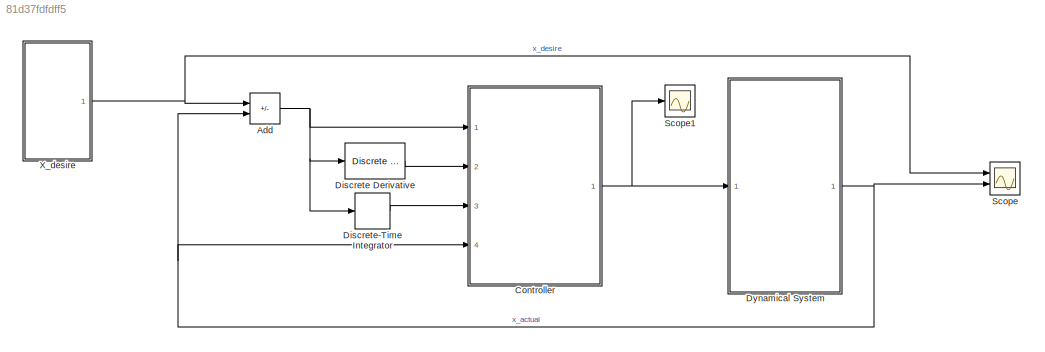
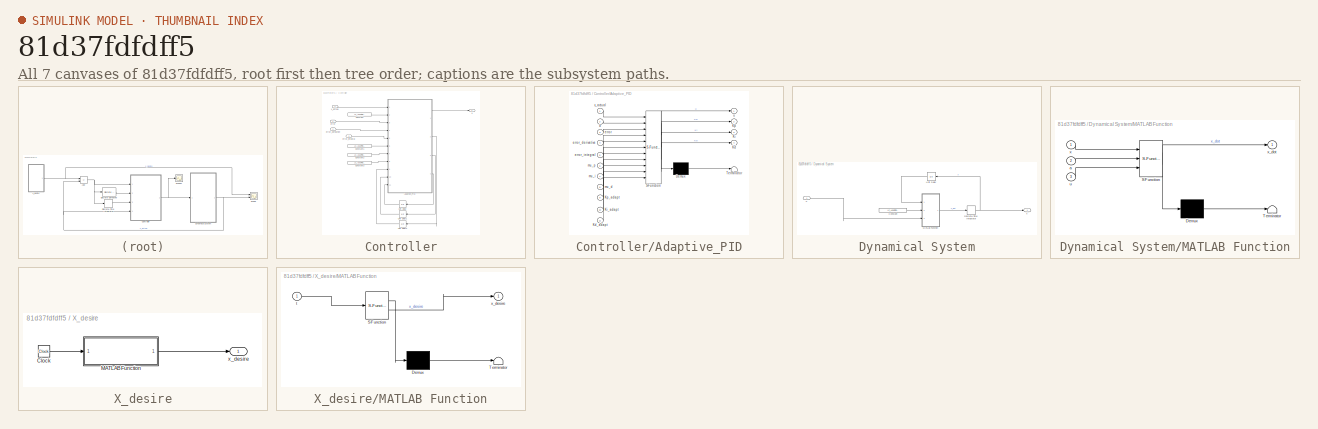
[diagram: thumbnail index - all 7 canvases of the model, root first then tree order]
MODEL slx_81d37fdfdff5
KIND model
CONFIG AbsTol = auto
CONFIG EnableMultiTasking = off
CONFIG FixedStep = 0.01
CONFIG MaxStep = auto
CONFIG MinStep = auto
CONFIG RelTol = 1e-3
CONFIG SampleTimeConstraint = Unconstrained
CONFIG SolverName = FixedStepAuto
CONFIG StartTime = 0.0
CONFIG StopTime = 60
BLOCK [Sum] Add
  IconShape = rectangular
  Inputs = +-
  Ports = [2, 1]
BLOCK [SubSystem] Controller
  Ports = [4, 1]
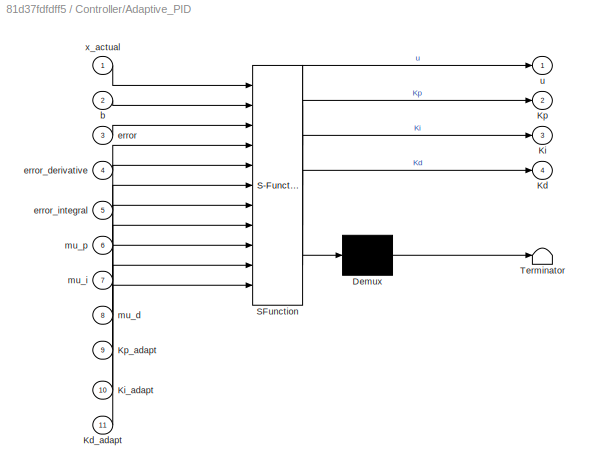
BLOCK [SubSystem] Controller/Adaptive_PID
  ErrorFcn = Stateflow.Translate.translate
  PermitHierarchicalResolution = ExplicitOnly
  Ports = [11, 4]
  SFBlockType = MATLAB Function
  TreatAsAtomicUnit = on
BLOCK [Demux] Controller/Adaptive_PID/ Demux 
  Outputs = 1
  Ports = [1, 1]
BLOCK [S-Function] Controller/Adaptive_PID/ SFunction 
  EnableBusSupport = on
  FunctionName = sf_sfun
  PortCounts = [11 5]
  Ports = [11, 5]
  SFcnIsStateOwnerBlock = off
  SFunctionDeploymentMode = off
  Tag = Stateflow S-Function 3
BLOCK [Terminator] Controller/Adaptive_PID/ Terminator 
BLOCK [Outport] Controller/Adaptive_PID/Kd
  Port = 4
BLOCK [Inport] Controller/Adaptive_PID/Kd_adapt
  Port = 11
BLOCK [Outport] Controller/Adaptive_PID/Ki
  Port = 3
BLOCK [Inport] Controller/Adaptive_PID/Ki_adapt
  Port = 10
BLOCK [Outport] Controller/Adaptive_PID/Kp
  Port = 2
BLOCK [Inport] Controller/Adaptive_PID/Kp_adapt
  Port = 9
BLOCK [Inport] Controller/Adaptive_PID/b
  Port = 2
BLOCK [Inport] Controller/Adaptive_PID/error
  Port = 3
BLOCK [Inport] Controller/Adaptive_PID/error_derivative
  Port = 4
BLOCK [Inport] Controller/Adaptive_PID/error_integral
  Port = 5
BLOCK [Inport] Controller/Adaptive_PID/mu_d
  Port = 8
BLOCK [Inport] Controller/Adaptive_PID/mu_i
  Port = 7
BLOCK [Inport] Controller/Adaptive_PID/mu_p
  Port = 6
BLOCK [Outport] Controller/Adaptive_PID/u
BLOCK [Inport] Controller/Adaptive_PID/x_actual
BLOCK [Constant] Controller/Constant
  Value = LC_AdaptPID_b
BLOCK [Constant] Controller/Constant1
  Value = LC_AdaptPID_mu_p
BLOCK [Constant] Controller/Constant2
  Value = LC_AdaptPID_mu_i
BLOCK [Constant] Controller/Constant3
  Value = LC_AdaptPID_mu_d
BLOCK [UnitDelay] Controller/Unit Delay
  HasFrameUpgradeWarning = on
  InitialCondition = LC_AdaptPID_Kd
  SampleTime = -1
BLOCK [UnitDelay] Controller/Unit Delay1
  HasFrameUpgradeWarning = on
  InitialCondition = LC_AdaptPID_Ki
  SampleTime = -1
BLOCK [UnitDelay] Controller/Unit Delay2
  HasFrameUpgradeWarning = on
  InitialCondition = LC_AdaptPID_Kp
  SampleTime = -1
BLOCK [Inport] Controller/error
BLOCK [Inport] Controller/error_derivative
  Port = 2
BLOCK [Inport] Controller/error_integral
  Port = 3
BLOCK [Outport] Controller/u
BLOCK [Inport] Controller/x_actual
  Port = 4
BLOCK [Reference] Discrete Derivative  REF=simulink/Discrete/Discrete Derivative
  Ports = [1, 1]
  SourceBlock = simulink/Discrete/Discrete Derivative
  SourceType = Discrete Derivative
BLOCK [DiscreteIntegrator] Discrete-Time Integrator
  ICPrevOutput = DiscIntNeverNeededParam
  ICPrevScaledInput = DiscIntNeverNeededParam
  InitialConditionSetting = Auto
  Ports = [1, 1]
  SampleTime = -1
BLOCK [SubSystem] Dynamical System
  Ports = [1, 1]
BLOCK [Constant] Dynamical System/Constant
  Value = LC_AdaptPID_a
BLOCK [DiscreteIntegrator] Dynamical System/Discrete-Time Integrator
  ICPrevOutput = DiscIntNeverNeededParam
  ICPrevScaledInput = DiscIntNeverNeededParam
  InitialConditionSetting = Auto
  Ports = [1, 1]
  SampleTime = -1
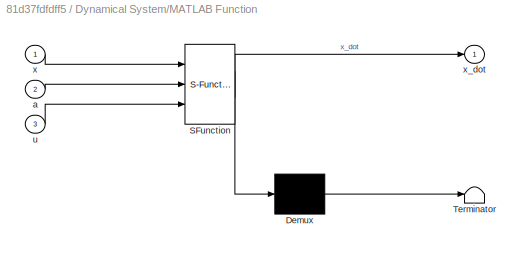
BLOCK [SubSystem] Dynamical System/MATLAB Function
  ErrorFcn = Stateflow.Translate.translate
  PermitHierarchicalResolution = ExplicitOnly
  Ports = [3, 1]
  SFBlockType = MATLAB Function
  TreatAsAtomicUnit = on
BLOCK [Demux] Dynamical System/MATLAB Function/ Demux 
  Outputs = 1
  Ports = [1, 1]
BLOCK [S-Function] Dynamical System/MATLAB Function/ SFunction 
  EnableBusSupport = on
  FunctionName = sf_sfun
  PortCounts = [3 2]
  Ports = [3, 2]
  SFcnIsStateOwnerBlock = off
  SFunctionDeploymentMode = off
  Tag = Stateflow S-Function 2
BLOCK [Terminator] Dynamical System/MATLAB Function/ Terminator 
BLOCK [Inport] Dynamical System/MATLAB Function/a
  Port = 2
BLOCK [Inport] Dynamical System/MATLAB Function/u
  Port = 3
BLOCK [Inport] Dynamical System/MATLAB Function/x
BLOCK [Outport] Dynamical System/MATLAB Function/x_dot
BLOCK [UnitDelay] Dynamical System/Unit Delay
  HasFrameUpgradeWarning = on
  SampleTime = -1
BLOCK [Inport] Dynamical System/u
BLOCK [Outport] Dynamical System/x
BLOCK [Scope] Scope
  Floating = off
  NumInputPorts = 2
  Ports = [2]
  ScopeSpecificationString = Simulink.scopes.TimeScopeBlockCfg('CurrentConfiguration', extmgr.ConfigurationSet(extmgr.Configuration('Core','General UI',true),extmgr.Configuration('Core','Source UI',true),extmgr.Configuration('Sources','WiredSimulink',true),extmgr.Configuration('Visuals','Time Domain',true,'SerializedDisplays',{struct('MinYLimReal','-1.31124','MaxYLimReal','1.2568','YLabelReal','','MinYLimMag','0.00000','MaxYL...<+1408ch>
BLOCK [Scope] Scope1
  Floating = off
  NumInputPorts = 1
  Ports = [1]
  ScopeSpecificationString = Simulink.scopes.TimeScopeBlockCfg('CurrentConfiguration', extmgr.ConfigurationSet(extmgr.Configuration('Core','General UI',true),extmgr.Configuration('Core','Source UI',true),extmgr.Configuration('Sources','WiredSimulink',true,'DataLoggingVariableName','ScopeData1'),extmgr.Configuration('Visuals','Time Domain',true,'SerializedDisplays',{struct('MinYLimReal','-60.03672','MaxYLimReal','15.06966','YL...<+1375ch>
BLOCK [SubSystem] X_desire
  Ports = [0, 1]
BLOCK [Clock] X_desire/Clock
BLOCK [SubSystem] X_desire/MATLAB Function
  ErrorFcn = Stateflow.Translate.translate
  PermitHierarchicalResolution = ExplicitOnly
  Ports = [1, 1]
  SFBlockType = MATLAB Function
  TreatAsAtomicUnit = on
BLOCK [Demux] X_desire/MATLAB Function/ Demux 
  Outputs = 1
  Ports = [1, 1]
BLOCK [S-Function] X_desire/MATLAB Function/ SFunction 
  EnableBusSupport = on
  FunctionName = sf_sfun
  PortCounts = [1 2]
  Ports = [1, 2]
  SFcnIsStateOwnerBlock = off
  SFunctionDeploymentMode = off
  Tag = Stateflow S-Function 1
BLOCK [Terminator] X_desire/MATLAB Function/ Terminator 
BLOCK [Inport] X_desire/MATLAB Function/t
BLOCK [Outport] X_desire/MATLAB Function/x_desire
BLOCK [Outport] X_desire/x_desire
NET Add:1 -> Controller:1, Discrete Derivative:1, Discrete-Time Integrator:1
LINE Controller/Adaptive_PID:1 -> Controller/u:1
LINE Controller/Adaptive_PID:2 -> Controller/Unit Delay2:1
LINE Controller/Adaptive_PID:3 -> Controller/Unit Delay1:1
LINE Controller/Adaptive_PID:4 -> Controller/Unit Delay:1
LINE Controller/Constant1:1 -> Controller/Adaptive_PID:6
LINE Controller/Constant2:1 -> Controller/Adaptive_PID:7
LINE Controller/Constant3:1 -> Controller/Adaptive_PID:8
LINE Controller/Constant:1 -> Controller/Adaptive_PID:2
LINE Controller/Unit Delay1:1 -> Controller/Adaptive_PID:10
LINE Controller/Unit Delay2:1 -> Controller/Adaptive_PID:9
LINE Controller/Unit Delay:1 -> Controller/Adaptive_PID:11
LINE Controller/error:1 -> Controller/Adaptive_PID:3
LINE Controller/error_derivative:1 -> Controller/Adaptive_PID:4
LINE Controller/error_integral:1 -> Controller/Adaptive_PID:5
LINE Controller/x_actual:1 -> Controller/Adaptive_PID:1
NET Controller:1 -> Dynamical System:1, Scope1:1
LINE Discrete Derivative:1 -> Controller:2
LINE Discrete-Time Integrator:1 -> Controller:3
LINE Dynamical System/Constant:1 -> Dynamical System/MATLAB Function:2
NET Dynamical System/Discrete-Time Integrator:1 -> Dynamical System/Unit Delay:1, Dynamical System/x:1
LINE Dynamical System/MATLAB Function:1 -> Dynamical System/Discrete-Time Integrator:1
LINE Dynamical System/Unit Delay:1 -> Dynamical System/MATLAB Function:1
LINE Dynamical System/u:1 -> Dynamical System/MATLAB Function:3
NET Dynamical System:1 -> Add:2, Controller:4, Scope:2
LINE X_desire/Clock:1 -> X_desire/MATLAB Function:1
LINE X_desire/MATLAB Function:1 -> X_desire/x_desire:1
NET X_desire:1 -> Add:1, Scope:1
note: NET lines group one-source signal fan-out (src -> all destinations, sorted); 1:1 wires keep LINE
CHART X_desire/MATLAB Function states=1 transitions=1
  STATE_LABEL 'eML_blk_kernel()'
  STATE_LABEL 'SCRIPT:\nfunction x_desire = fcn(t)\n\nif t < 5\n    x_desire = 1;\nelse\n    x_desire = sin(4 * t) * cos(3 * t); \nend \n\nend \n\n'
CHART Dynamical System/MATLAB Function states=1 transitions=1
  STATE_LABEL 'eML_blk_kernel()'
  STATE_LABEL 'SCRIPT:\nfunction x_dot = fcn(x,a,u)\n\n\nx_dot = -a*(x^2) + u;'
CHART Controller/Adaptive_PID states=1 transitions=1
  STATE_LABEL 'eML_blk_kernel()'
  STATE_LABEL 'SCRIPT:\nfunction [u,Kp,Ki,Kd] = fcn(x_actual,b,error, error_derivative, error_integral,mu_p,mu_i,mu_d,Kp_adapt,Ki_adapt,Kd_adapt) \n\n\nKp = Kp_adapt + (mu_p * error * error);\nKi = Ki_adapt + (mu_i * error * error_integral);\nKd = Kd_adapt + (mu_d * error * error_derivative);\n\n\nu = (Kp_adapt * error) + (Ki_adapt * error_integral) + (Kd_adapt * error_derivative) - (b*x_actual^2); \n\n\n\nend\n\n\n'
CHART  states=0 transitions=0
CHART  states=0 transitions=0
CHART  states=0 transitions=0
